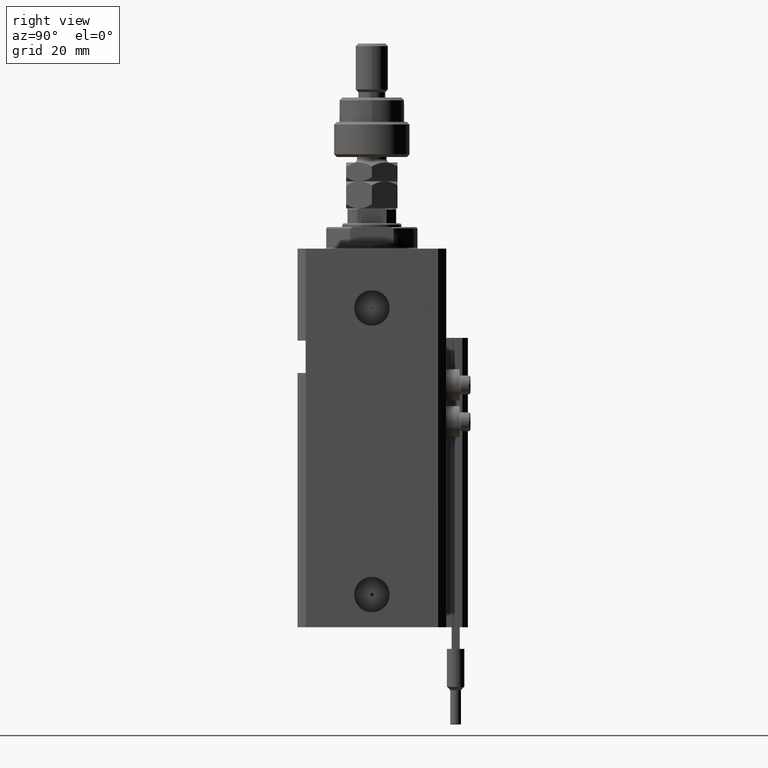
[diagram: clean part render]
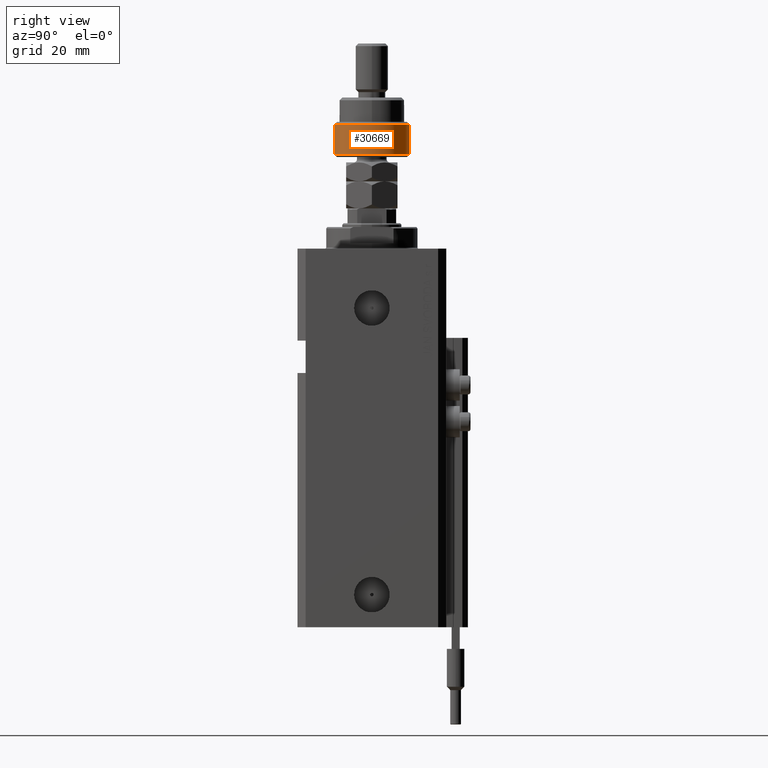
[diagram: same view with one face highlighted and labeled with its STEP entity id]
A machine part, right view. The second image highlights one B-rep face of the part: STEP entity #30669.
In plain terms, the highlighted cylindrical surface (partial cylindrical patch) has radius 14 mm, axis along (-0, -0, -1).
Its self-contained STEP definition (entity closure, byte-faithful):
#16 = EDGE_CURVE ( 'NONE', #32053, #39207, #21923, .T. ) ;
#2313 = ORIENTED_EDGE ( 'NONE', *, *, #32076, .T. ) ;
#3248 = CARTESIAN_POINT ( 'NONE',  ( 0.000000000000000000, 0.000000000000000000, 1.000000000000018208 ) ) ;
#4250 = ORIENTED_EDGE ( 'NONE', *, *, #15047, .T. ) ;
#4253 = EDGE_CURVE ( 'NONE', #23830, #39207, #32606, .T. ) ;
#4626 = AXIS2_PLACEMENT_3D ( 'NONE', #3248, #34703, #26457 ) ;
#7083 = ORIENTED_EDGE ( 'NONE', *, *, #16, .F. ) ;
#9918 = DIRECTION ( 'NONE',  ( -0.000000000000000000, -0.000000000000000000, -1.000000000000000000 ) ) ;
#10620 = CARTESIAN_POINT ( 'NONE',  ( 0.000000000000000000, 0.000000000000000000, 13.00000000000000000 ) ) ;
#13919 = VECTOR ( 'NONE', #45402, 1000.000000000000000 ) ;
#14343 = CARTESIAN_POINT ( 'NONE',  ( 14.00000000000000000, 0.000000000000000000, 1.000000000000018208 ) ) ;
#15047 = EDGE_CURVE ( 'NONE', #30836, #23830, #15614, .T. ) ;
#15614 = CIRCLE ( 'NONE', #46095, 14.00000000000000000 ) ;
#17249 = CARTESIAN_POINT ( 'NONE',  ( -12.64911064067351809, -5.999999999999999112, 1.000000000000021760 ) ) ;
#17587 = AXIS2_PLACEMENT_3D ( 'NONE', #10620, #45167, #22196 ) ;
#19666 = CARTESIAN_POINT ( 'NONE',  ( -12.64911064067351809, 6.000000000000000000, 1.000000000000021760 ) ) ;
#20136 = EDGE_LOOP ( 'NONE', ( #7083, #37196, #2313, #4250, #33936 ) ) ;
#21233 = LINE ( 'NONE', #25343, #28350 ) ;
#21749 = CARTESIAN_POINT ( 'NONE',  ( -12.64911064067351809, 6.000000000000000000, 12.00000000000002842 ) ) ;
#21923 = LINE ( 'NONE', #37404, #13919 ) ;
#22196 = DIRECTION ( 'NONE',  ( -1.000000000000000000, 0.000000000000000000, 0.000000000000000000 ) ) ;
#23830 = VERTEX_POINT ( 'NONE', #14343 ) ;
#25219 = CARTESIAN_POINT ( 'NONE',  ( 0.000000000000000000, 0.000000000000000000, 1.000000000000018208 ) ) ;
#25343 = CARTESIAN_POINT ( 'NONE',  ( -12.64911064067351809, -5.999999999999999112, 14.50000000000000000 ) ) ;
#26457 = DIRECTION ( 'NONE',  ( 1.000000000000000000, 0.000000000000000000, 0.000000000000000000 ) ) ;
#28350 = VECTOR ( 'NONE', #9918, 1000.000000000000000 ) ;
#29822 = CARTESIAN_POINT ( 'NONE',  ( 0.000000000000000000, 0.000000000000000000, 12.00000000000002842 ) ) ;
#30669 = ADVANCED_FACE ( 'NONE', ( #49545 ), #41546, .T. ) ;
#30836 = VERTEX_POINT ( 'NONE', #17249 ) ;
#32053 = VERTEX_POINT ( 'NONE', #21749 ) ;
#32076 = EDGE_CURVE ( 'NONE', #46382, #30836, #21233, .T. ) ;
#32606 = CIRCLE ( 'NONE', #4626, 14.00000000000000000 ) ;
#32616 = AXIS2_PLACEMENT_3D ( 'NONE', #29822, #41691, #38085 ) ;
#32972 = DIRECTION ( 'NONE',  ( 1.000000000000000000, 0.000000000000000000, 0.000000000000000000 ) ) ;
#33936 = ORIENTED_EDGE ( 'NONE', *, *, #4253, .T. ) ;
#34703 = DIRECTION ( 'NONE',  ( -0.000000000000000000, -0.000000000000000000, 1.000000000000000000 ) ) ;
#35929 = CIRCLE ( 'NONE', #32616, 14.00000000000000000 ) ;
#37196 = ORIENTED_EDGE ( 'NONE', *, *, #39983, .T. ) ;
#37404 = CARTESIAN_POINT ( 'NONE',  ( -12.64911064067351809, 6.000000000000000000, 14.50000000000000000 ) ) ;
#38085 = DIRECTION ( 'NONE',  ( 1.000000000000000000, 0.000000000000000000, 0.000000000000000000 ) ) ;
#39207 = VERTEX_POINT ( 'NONE', #19666 ) ;
#39983 = EDGE_CURVE ( 'NONE', #32053, #46382, #35929, .T. ) ;
#41488 = DIRECTION ( 'NONE',  ( -0.000000000000000000, -0.000000000000000000, 1.000000000000000000 ) ) ;
#41546 = CYLINDRICAL_SURFACE ( 'NONE', #17587, 14.00000000000000000 ) ;
#41691 = DIRECTION ( 'NONE',  ( 0.000000000000000000, 0.000000000000000000, -1.000000000000000000 ) ) ;
#44871 = CARTESIAN_POINT ( 'NONE',  ( -12.64911064067351809, -5.999999999999999112, 12.00000000000002842 ) ) ;
#45167 = DIRECTION ( 'NONE',  ( -0.000000000000000000, -0.000000000000000000, -1.000000000000000000 ) ) ;
#45402 = DIRECTION ( 'NONE',  ( -0.000000000000000000, -0.000000000000000000, -1.000000000000000000 ) ) ;
#46095 = AXIS2_PLACEMENT_3D ( 'NONE', #25219, #41488, #32972 ) ;
#46382 = VERTEX_POINT ( 'NONE', #44871 ) ;
#49545 = FACE_OUTER_BOUND ( 'NONE', #20136, .T. ) ;